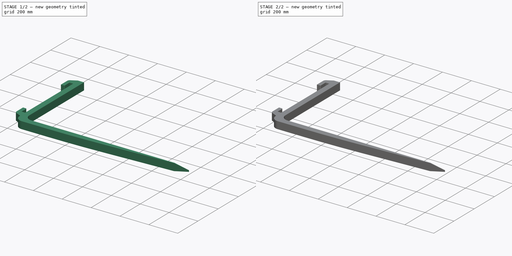
[diagram: build sequence overview — one tinted view per stage of 2, left to right]
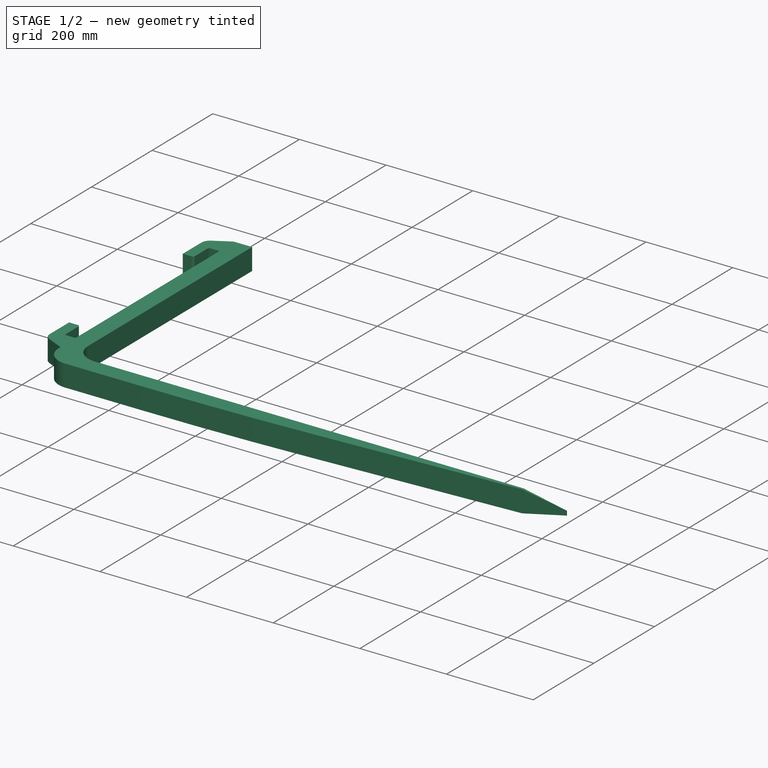
[diagram: stage 1 of 2 — iso view after this stage's code; geometry added in this stage tinted green]
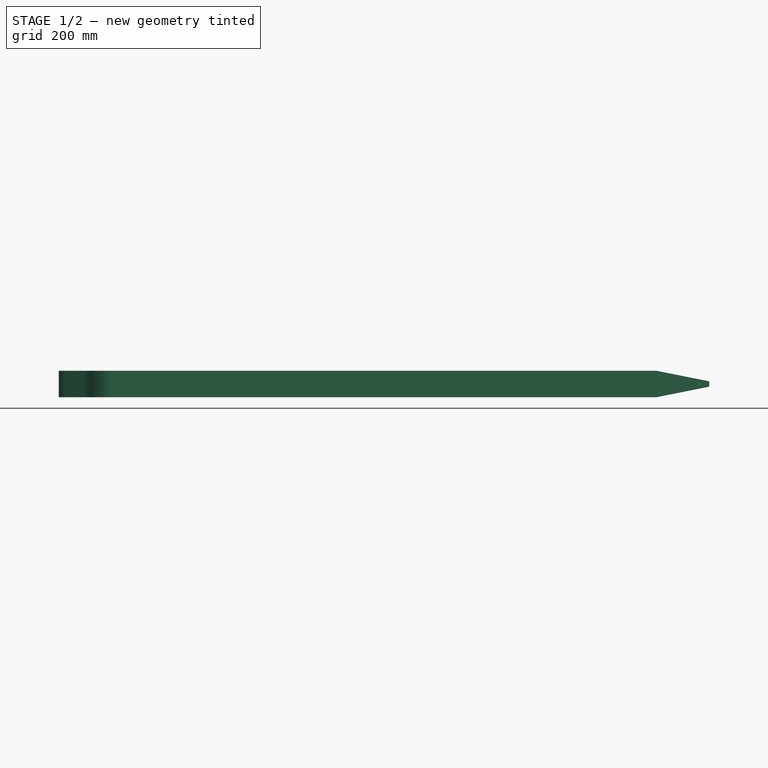
[diagram: stage 1 of 2 — front view after this stage's code; geometry added in this stage tinted green]
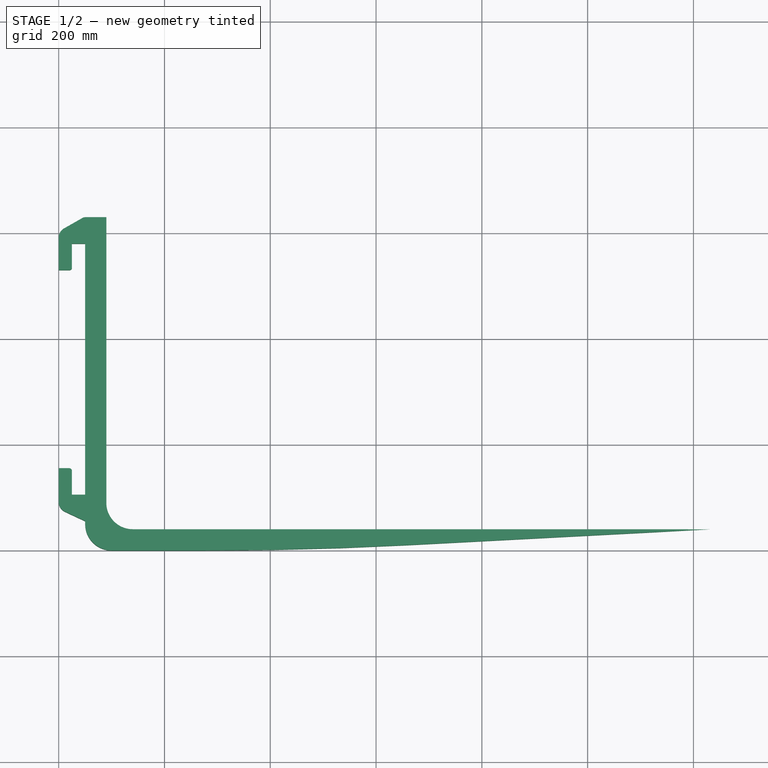
[diagram: stage 1 of 2 — top view after this stage's code; geometry added in this stage tinted green]
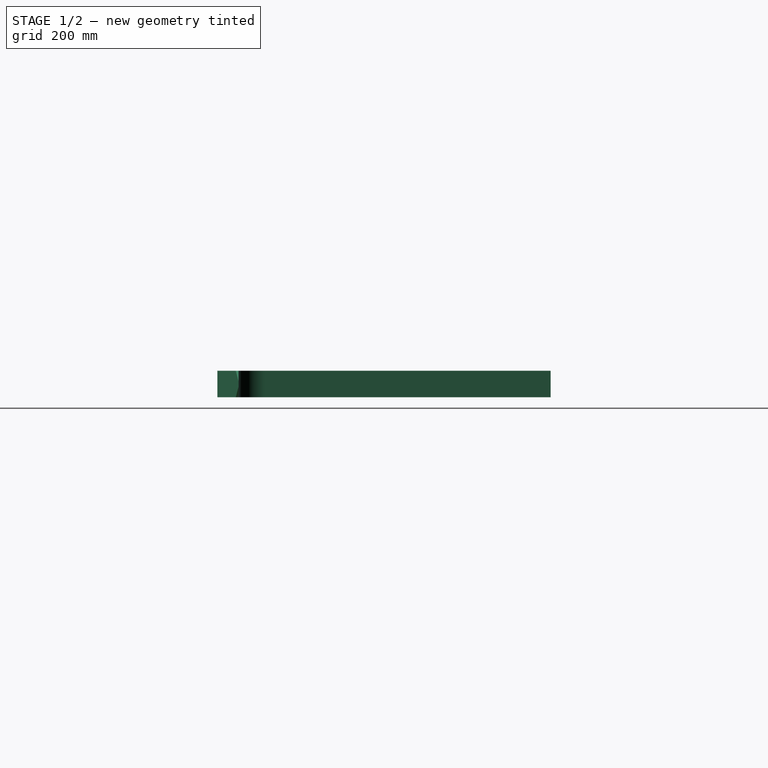
[diagram: stage 1 of 2 — right view after this stage's code; geometry added in this stage tinted green]
FCSTD DOCUMENT  (FreeCAD 0.18.3R)
Label: ForkLift
License: All rights reserved
LicenseURL: http://en.wikipedia.org/wiki/All_rights_reserved
objects: Sketcher::SketchObject×3, PartDesign::Pocket×2, PartDesign::Pad×1, PartDesign::Plane×1, PartDesign::Point×1, PartDesign::Line×1, PartDesign::Fillet×1, PartDesign::Body×1
note: 14 computed .brp shape members not serialized (recipe doc carries the construction recipe); baked Part::Feature solids carry a one-line shape summary decoded from their .brp

FEATURE [Sketcher::SketchObject] Sketch
  MapMode = 5
  Support = -> [XY_Plane]
  sketch-geometry (25):
    g0: LineSegment StartX=100 StartY=5.22888e-10 StartZ=0 EndX=277.11 EndY=0 EndZ=0
    g1: LineSegment StartX=1230 StartY=40 StartZ=0 EndX=658.423 EndY=10 EndZ=0
    g2: LineSegment StartX=0 StartY=91.44 StartZ=0 EndX=0 EndY=155.39 EndZ=0
    g3: LineSegment StartX=25 StartY=105.39 StartZ=0 EndX=25 EndY=150.39 EndZ=0
    g4: LineSegment StartX=0 StartY=155.39 StartZ=0 EndX=20 EndY=155.39 EndZ=0
    g5: ArcOfCircle CenterX=20 CenterY=150.39 CenterZ=0 NormalX=0 NormalY=0 NormalZ=1 AngleXU=0 Radius=5 StartAngle=2.8e-15 EndAngle=1.5708
    g6: LineSegment StartX=45.06 StartY=628.695 StartZ=0 EndX=10.12 EndY=608.843 EndZ=0
    g7: LineSegment StartX=3.6e-15 StartY=591.454 StartZ=0 EndX=3.1e-15 EndY=530 EndZ=0
    g8: LineSegment StartX=3.1e-15 StartY=530 StartZ=0 EndX=20 EndY=530 EndZ=0
    g9: LineSegment StartX=25 StartY=535 StartZ=0 EndX=25 EndY=580 EndZ=0
    g10: LineSegment StartX=25 StartY=580 StartZ=0 EndX=50 EndY=580 EndZ=0
    g11: LineSegment StartX=50 StartY=630 StartZ=0 EndX=90 EndY=630 EndZ=0
    g12: ArcOfCircle CenterX=20 CenterY=535 CenterZ=0 NormalX=0 NormalY=0 NormalZ=1 AngleXU=0 Radius=5 StartAngle=4.71239 EndAngle=6.28319
    g13: ArcOfCircle CenterX=20 CenterY=591.454 CenterZ=0 NormalX=0 NormalY=0 NormalZ=1 AngleXU=0 Radius=20 StartAngle=2.08748 EndAngle=3.14159
    g14: LineSegment StartX=11.5503 StartY=73.3126 StartZ=0 EndX=50 EndY=55.39 EndZ=0
    g15: ArcOfCircle CenterX=20 CenterY=91.44 CenterZ=0 NormalX=0 NormalY=0 NormalZ=1 AngleXU=0 Radius=20 StartAngle=3.14159 EndAngle=4.2762
    g16: ArcOfCircle CenterX=50 CenterY=620 CenterZ=0 NormalX=0 NormalY=0 NormalZ=1 AngleXU=0 Radius=10 StartAngle=1.5708 EndAngle=2.08748
    g17: LineSegment StartX=50 StartY=580 StartZ=0 EndX=50 EndY=105.39 EndZ=0
    g18: LineSegment StartX=50 StartY=55.39 StartZ=0 EndX=50 EndY=50 EndZ=0
    g19: ArcOfCircle CenterX=100 CenterY=50 CenterZ=0 NormalX=0 NormalY=0 NormalZ=1 AngleXU=0 Radius=50 StartAngle=3.14159 EndAngle=4.71239
    g20: LineSegment StartX=90 StartY=630 StartZ=0 EndX=90 EndY=90 EndZ=0
    g21: LineSegment StartX=140 StartY=40 StartZ=0 EndX=1230 EndY=40 EndZ=0
    g22: ArcOfCircle CenterX=140 CenterY=90 CenterZ=0 NormalX=0 NormalY=0 NormalZ=1 AngleXU=0 Radius=50 StartAngle=3.14159 EndAngle=4.71239
    g23: ArcOfCircle CenterX=277.11 CenterY=7275 CenterZ=0 NormalX=0 NormalY=0 NormalZ=1 AngleXU=0 Radius=7275 StartAngle=4.71239 EndAngle=4.76483
    g24: LineSegment StartX=25 StartY=105.39 StartZ=0 EndX=50 EndY=105.39 EndZ=0
  constraints (67):
    c: Angle(g-1,g0) = 0
    c: DistanceX(g14,g17) = 0
    c: DistanceX(g2,g17) = 50
    c: DistanceY(g14,g17) = 50
    c: DistanceY(g14,g2) = 100
    c: Parallel(g4,g0)
    c: Tangent(g4,g5) = 1.5708
    c: Tangent(g3,g5) = -1.5708
    c: Radius(g5) = 5
    c: DistanceX(g2,g3) = 25
    c: Coincident(g4,g2)
    c: Parallel(g8,g4)
    c: Parallel(g9,g7)
    c: DistanceY(g10,g11) = 50
    c: Coincident(g8,g7)
    c: Coincident(g10,g9)
    c: DistanceX(g7,g11) = 50
    c: DistanceY(g7,g11) = 100
    c: Tangent(g8,g12) = -1.5708
    c: Tangent(g9,g12) = -1.5708
    c: Radius(g12) = 5
    c: DistanceX(g7,g9) = 25
    c: Tangent(g7,g13) = -1.5708
    c: Tangent(g6,g13) = -1.5708
    c: Radius(g13) = 20
    c: PointOnObject(g2,g-2)
    c: Tangent(g2,g15) = 1.5708
    c: Tangent(g14,g15) = -1.5708
    c: Radius(g15) = 20
    c: DistanceX(g6,g10) = 39.88
    c: Tangent(g6,g16) = -1.5708
    c: Tangent(g11,g16) = 1.5708
    c: Radius(g16) = 10
    c: Coincident(g17,g10)
    c: Perpendicular(g-1,g17)
    c: Perpendicular(g-1,g7)
    c: Perpendicular(g2,g-1)
    c: DistanceX(g3,g17) = 25
    c: Coincident(g18,g14)
    c: Perpendicular(g-1,g18)
    c: Tangent(g18,g19) = -1.5708
    c: Tangent(g0,g19) = -1.5708
    c: Radius(g19) = 50
    c: DistanceY(g14,g2) = 36.05
    c: DistanceY(g18,g14) = 5.39
    c: Coincident(g11,g20)
    c: Perpendicular(g20,g-1)
    c: DistanceX(g10,g11) = 40
    c: Horizontal(g21)
    c: Coincident(g21,g1)
    c: Tangent(g20,g22) = -1.5708
    c: Tangent(g21,g22) = -1.5708
    c: Radius(g22) = 50
    c: DistanceX(g21,g21) = 1090
    c: Tangent(g0,g23) = -1.5708
    c: Tangent(g1,g23) = 1.5708
    c: Radius(g23) = 7275
    c: DistanceY(g0,g1) = 40
    c: Horizontal(g11)
    c: DistanceY(g0,g11) = 630
    c: Horizontal(g24)
    c: Coincident(g3,g24)
    c: Coincident(g24,g17)
    c: DistanceX(g10,g11) = 0
    c: Horizontal(g10)
    c: DistanceY(g1,g1) = 30
    c: PointOnObject(g0,g-1)
FEATURE [PartDesign::Pad] Pad
  Length = 50
  Length2 = 100
  Profile = -> Sketch
  Type = 0
FEATURE [Sketcher::SketchObject] Sketch001
  ExternalGeometry = -> [Pad]
  MapMode = 5
  Placement = pos=(0,40,0) rot=(0,0.707107,0.707107;3.14159rad)
  Support = -> [Pad]
  sketch-geometry (6):
    g0: LineSegment StartX=-1130 StartY=0 StartZ=0 EndX=-1230 EndY=0 EndZ=0
    g1: LineSegment StartX=-1230 StartY=0 StartZ=0 EndX=-1230 EndY=20 EndZ=0
    g2: LineSegment StartX=-1230 StartY=20 StartZ=0 EndX=-1130 EndY=0 EndZ=0
    g3: LineSegment StartX=-1230 StartY=50 StartZ=0 EndX=-1230 EndY=30 EndZ=0
    g4: LineSegment StartX=-1230 StartY=50 StartZ=0 EndX=-1130 EndY=50 EndZ=0
    g5: LineSegment StartX=-1230 StartY=30 StartZ=0 EndX=-1130 EndY=50 EndZ=0
  constraints (16):
    c: Coincident(g1,g0)
    c: Vertical(g1)
    c: Horizontal(g0)
    c: Coincident(g2,g1)
    c: Coincident(g2,g0)
    c: DistanceX(g0,g0) = 100
    c: DistanceY(g1,g1) = 20
    c: Coincident(g0,g-3)
    c: Vertical(g3)
    c: Horizontal(g4)
    c: Coincident(g5,g4)
    c: Coincident(g3,g4)
    c: Coincident(g3,g5)
    c: DistanceY(g3,g3) = 20
    c: DistanceX(g4,g4) = 100
    c: Coincident(g3,g-3)
FEATURE [PartDesign::Pocket] Pocket
  BaseFeature = -> Pad
  Length = 50
  Length2 = 100
  Profile = -> Sketch001
  Type = 0
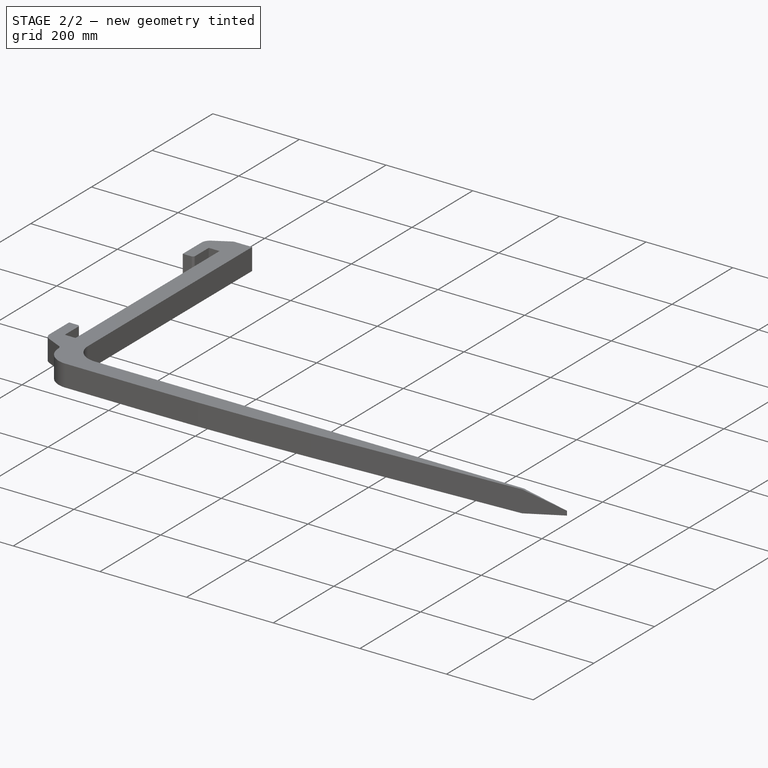
[diagram: stage 2 of 2 — iso view after this stage's code; geometry added in this stage tinted green]
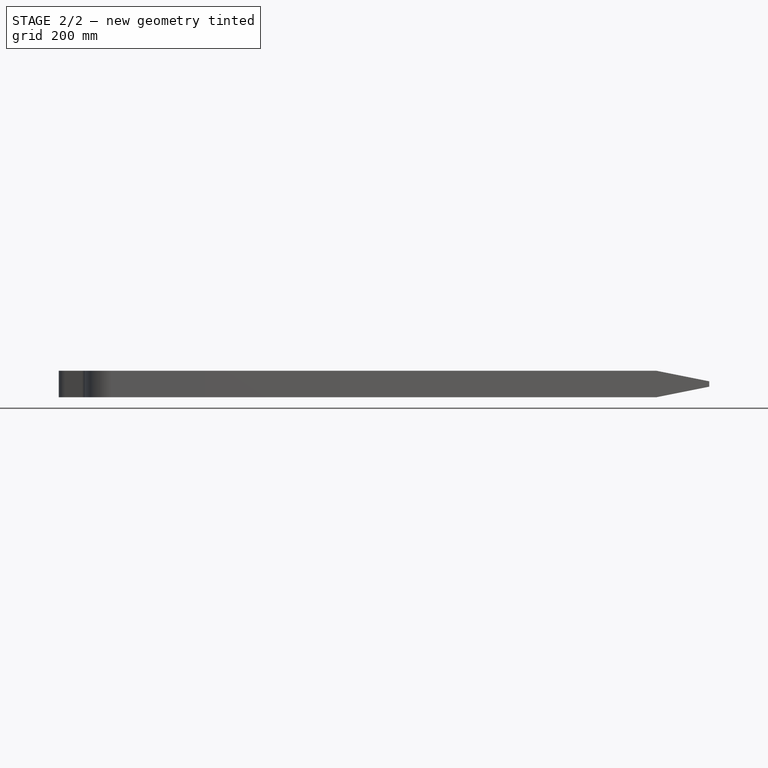
[diagram: stage 2 of 2 — front view after this stage's code; geometry added in this stage tinted green]
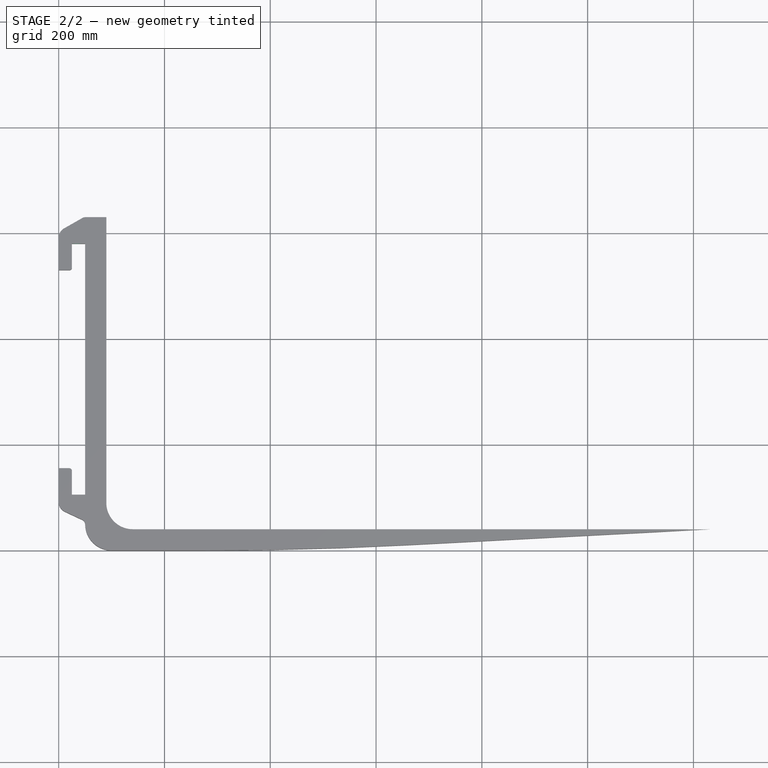
[diagram: stage 2 of 2 — top view after this stage's code; geometry added in this stage tinted green]
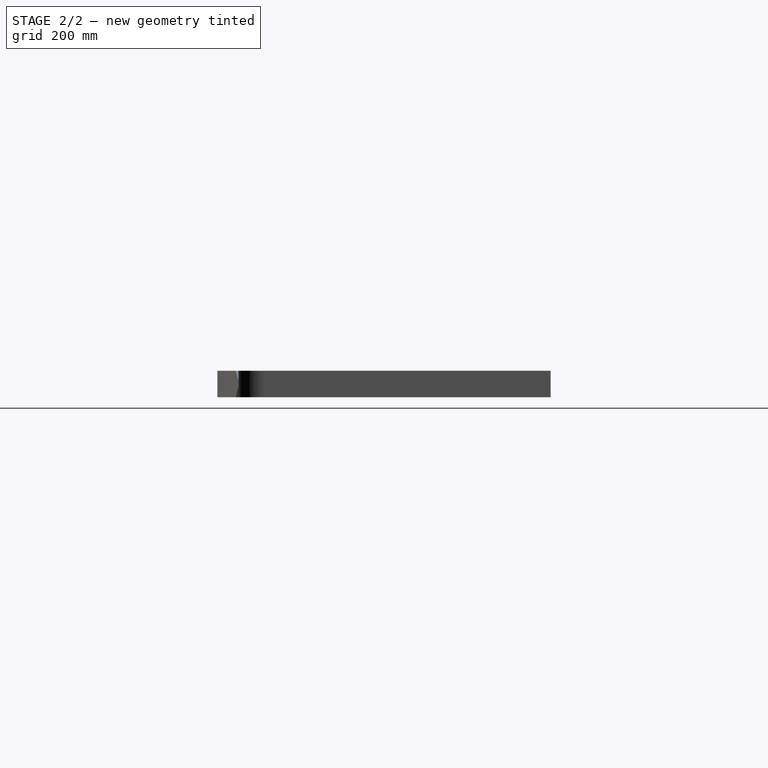
[diagram: stage 2 of 2 — right view after this stage's code; geometry added in this stage tinted green]
FEATURE [PartDesign::Plane] DatumPlane
  Length = 1294.55
  MapMode = 5
  Placement = pos=(0,630,0) rot=(0,0.707107,0.707107;3.14159rad)
  ResizeMode = 0
  Support = -> [Pocket]
  Width = 114.553
FEATURE [PartDesign::Point] DatumPoint
  AttacherType = Attacher::AttachEnginePoint
  MapMode = 37
  Placement = pos=(70,630,25) rot=(0,0,1;0rad)
  Support = -> [Pocket]
FEATURE [PartDesign::Line] DatumLine
  AttacherType = Attacher::AttachEngineLine
  MapMode = 29
  Placement = pos=(50,630,0) rot=(0,0,1;0rad)
  Support = -> [Pocket]
FEATURE [Sketcher::SketchObject] Sketch002
  ExternalGeometry = -> [Pocket]
  MapMode = 5
  Placement = pos=(0,630,0) rot=(0,0.707107,0.707107;3.14159rad)
  Support = -> [DatumPlane]
  sketch-geometry (1):
    g0: Circle CenterX=-35 CenterY=25 CenterZ=0 NormalX=0 NormalY=0 NormalZ=1 AngleXU=0 Radius=10
  constraints (3):
    c: Diameter(g0) = 20
    c: DistanceX(g-3,g0) = 15
    c: DistanceY(g-3,g0) = 25
FEATURE [PartDesign::Pocket] Pocket001
  BaseFeature = -> Pocket
  Length = 100
  Length2 = 100
  Profile = -> Sketch002
  Type = 0
FEATURE [PartDesign::Fillet] Fillet
  Base = -> Pocket001 [Edge8]
  BaseFeature = -> Pocket001
  Radius = 10
FEATURE [PartDesign::Body] Body
  Group = -> [Sketch,Pad,Sketch001,Pocket,DatumPlane,DatumPoint,DatumLine,Sketch002,Pocket001,Fillet]
  Origin = -> Origin
  Tip = -> Fillet
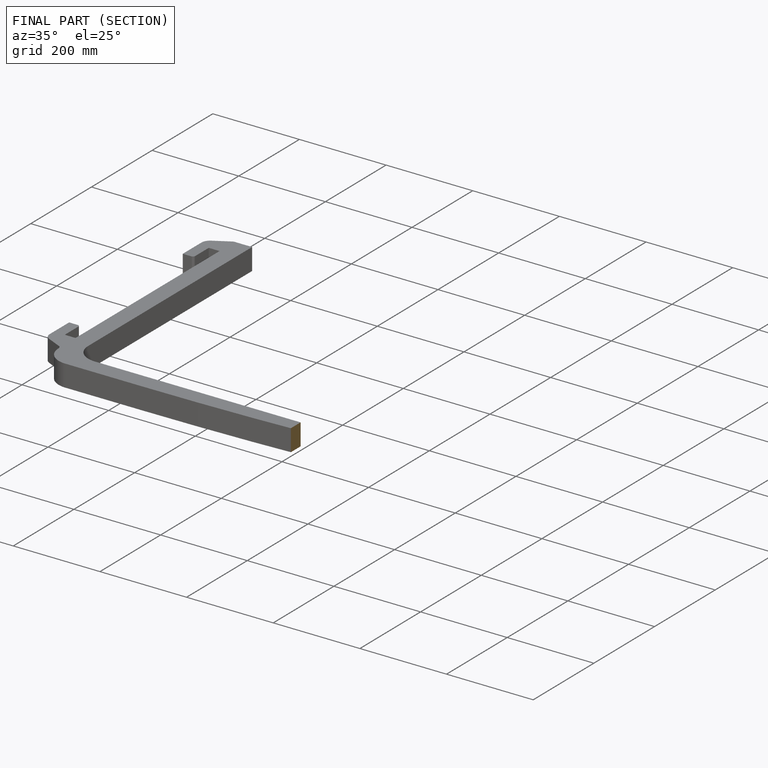
[diagram: finished part — half-section view (interior)]
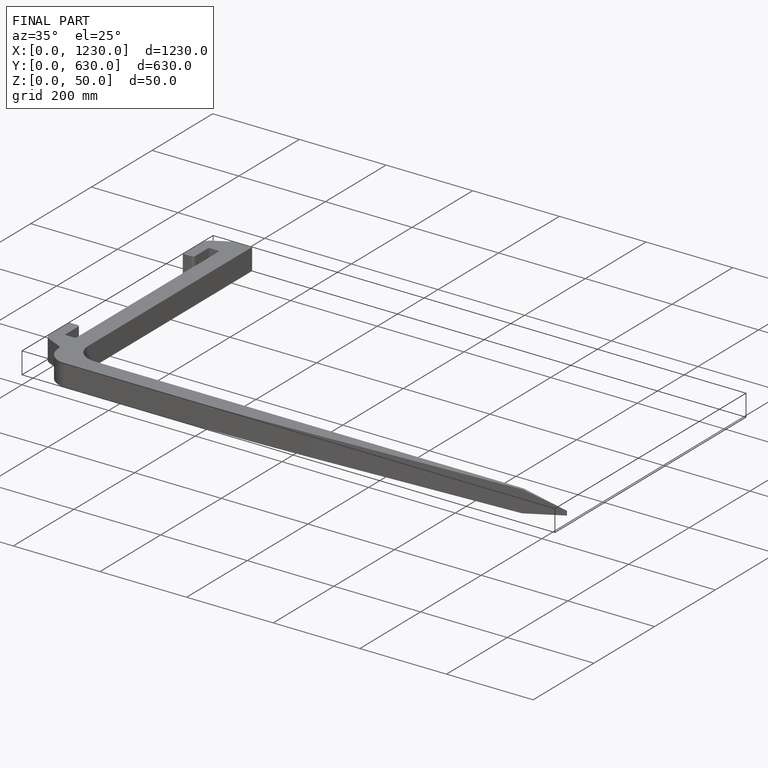
[diagram: finished part — iso view with bounding-box wireframe]
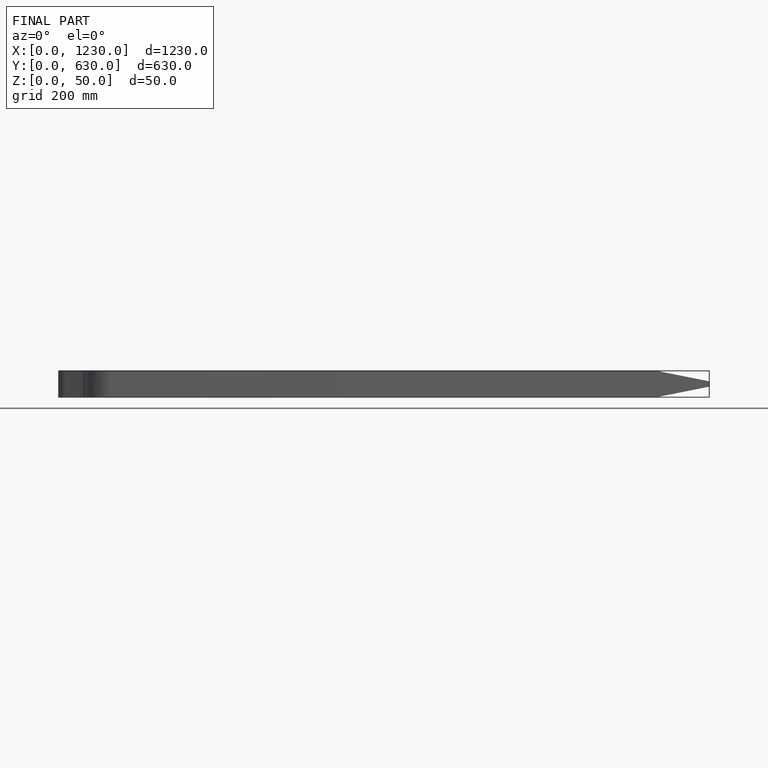
[diagram: finished part — front view with bounding-box wireframe]
